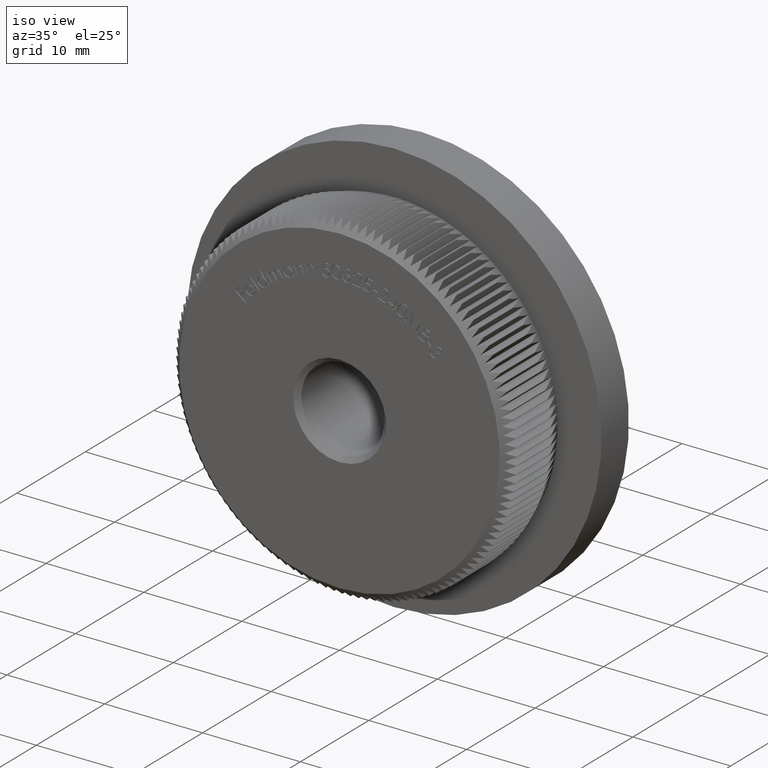
[diagram: clean part render]
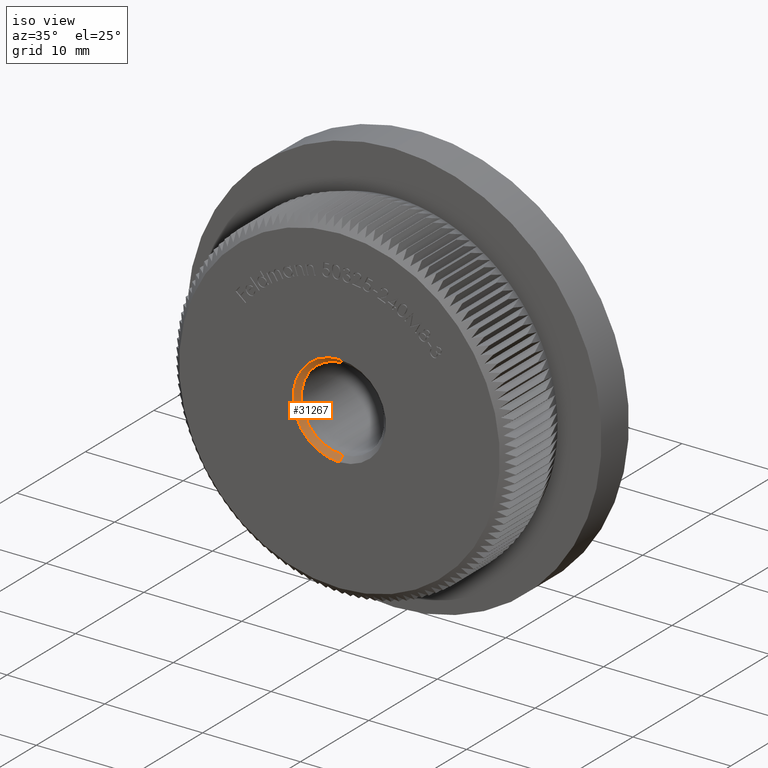
[diagram: same view with one face highlighted and labeled with its STEP entity id]
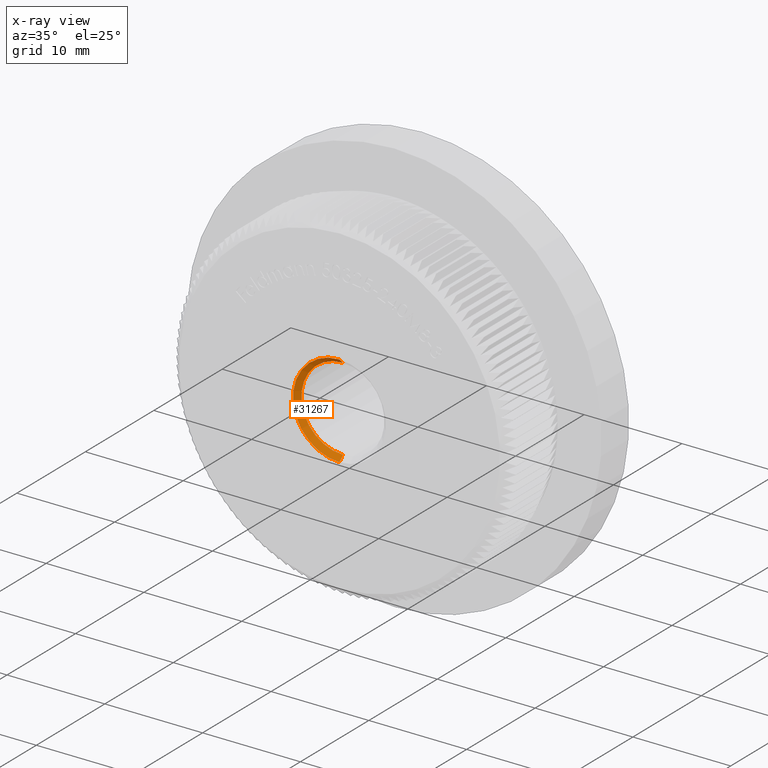
[diagram: x-ray of the same camera — body ghosted, the highlighted face saturated]
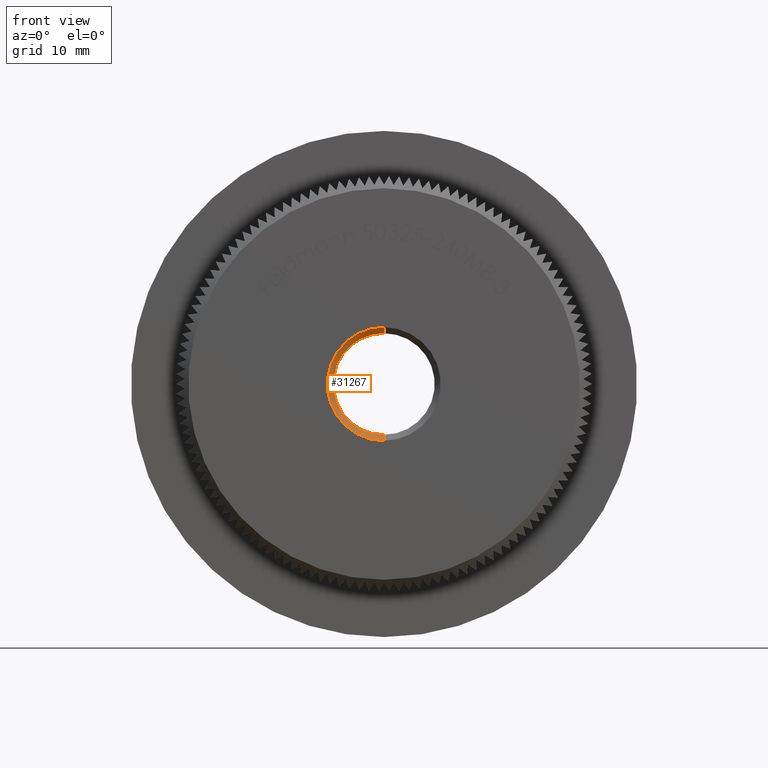
[diagram: same view with one face highlighted and labeled with its STEP entity id]
A machine part, iso view. The second image highlights one B-rep face of the part: STEP entity #31267.
The next image is the same camera in x-ray: the body ghosted, the highlighted face saturated — about 0% of this face is hidden behind the body in this view.
A second angle (front view) of the same face is appended — the face is thin or edge-on in the first view.
In plain terms, the highlighted conical surface has half-angle 45 deg.
Its self-contained STEP definition (entity closure, byte-faithful):
#838 = VERTEX_POINT ( 'NONE', #9972 ) ;
#862 = ORIENTED_EDGE ( 'NONE', *, *, #19292, .F. ) ;
#1239 = DIRECTION ( 'NONE',  ( 0.0000000000000000000, 0.0000000000000000000, -1.000000000000000000 ) ) ;
#1747 = DIRECTION ( 'NONE',  ( 0.0000000000000000000, -0.7071067811865432400, -0.7071067811865517900 ) ) ;
#3781 = ORIENTED_EDGE ( 'NONE', *, *, #21417, .F. ) ;
#4640 = ORIENTED_EDGE ( 'NONE', *, *, #32452, .F. ) ;
#6526 = CARTESIAN_POINT ( 'NONE',  ( 0.0000000000000000000, 0.5000000000000078800, 0.0000000000000000000 ) ) ;
#8167 = AXIS2_PLACEMENT_3D ( 'NONE', #19233, #21758, #11733 ) ;
#9894 = DIRECTION ( 'NONE',  ( 0.0000000000000000000, -1.000000000000000000, 0.0000000000000000000 ) ) ;
#9972 = CARTESIAN_POINT ( 'NONE',  ( 5.204748896376248700E-016, 0.5000000000000078800, 4.249999999999997300 ) ) ;
#10227 = EDGE_CURVE ( 'NONE', #838, #30052, #19107, .T. ) ;
#11066 = CIRCLE ( 'NONE', #13278, 4.249999999999997300 ) ;
#11733 = DIRECTION ( 'NONE',  ( 0.0000000000000000000, 0.0000000000000000000, -1.000000000000000000 ) ) ;
#12753 = CARTESIAN_POINT ( 'NONE',  ( 0.0000000000000000000, 0.5000000000000078800, 0.0000000000000000000 ) ) ;
#12952 = CIRCLE ( 'NONE', #8167, 4.750000000000011500 ) ;
#13278 = AXIS2_PLACEMENT_3D ( 'NONE', #6526, #24138, #1239 ) ;
#13383 = AXIS2_PLACEMENT_3D ( 'NONE', #12753, #9894, #17726 ) ;
#14135 = CARTESIAN_POINT ( 'NONE',  ( 0.0000000000000000000, 0.5000000000000078800, -4.249999999999997300 ) ) ;
#15670 = CONICAL_SURFACE ( 'NONE', #13383, 4.249999999999997300, 0.7853981633974543900 ) ;
#16100 = LINE ( 'NONE', #22004, #32299 ) ;
#17123 = VERTEX_POINT ( 'NONE', #26967 ) ;
#17726 = DIRECTION ( 'NONE',  ( 0.0000000000000000000, 0.0000000000000000000, -1.000000000000000000 ) ) ;
#19107 = LINE ( 'NONE', #22568, #20678 ) ;
#19233 = CARTESIAN_POINT ( 'NONE',  ( 0.0000000000000000000, 5.235365066354934100E-016, 0.0000000000000000000 ) ) ;
#19292 = EDGE_CURVE ( 'NONE', #838, #28461, #11066, .T. ) ;
#20391 = EDGE_LOOP ( 'NONE', ( #862, #27034, #4640, #3781 ) ) ;
#20474 = FACE_OUTER_BOUND ( 'NONE', #20391, .T. ) ;
#20678 = VECTOR ( 'NONE', #22449, 1000.000000000000000 ) ;
#20713 = CARTESIAN_POINT ( 'NONE',  ( 5.817072295949942200E-016, 5.235365066354934100E-016, 4.750000000000011500 ) ) ;
#21417 = EDGE_CURVE ( 'NONE', #28461, #17123, #16100, .T. ) ;
#21758 = DIRECTION ( 'NONE',  ( 0.0000000000000000000, 1.000000000000000000, 0.0000000000000000000 ) ) ;
#22004 = CARTESIAN_POINT ( 'NONE',  ( 0.0000000000000000000, 0.5000000000000078800, -4.249999999999997300 ) ) ;
#22449 = DIRECTION ( 'NONE',  ( 8.659560562354985900E-017, -0.7071067811865432400, 0.7071067811865517900 ) ) ;
#22568 = CARTESIAN_POINT ( 'NONE',  ( 5.204748896376248700E-016, 0.5000000000000078800, 4.249999999999997300 ) ) ;
#24138 = DIRECTION ( 'NONE',  ( 0.0000000000000000000, -1.000000000000000000, 0.0000000000000000000 ) ) ;
#26967 = CARTESIAN_POINT ( 'NONE',  ( 0.0000000000000000000, 5.235365066354934100E-016, -4.750000000000011500 ) ) ;
#27034 = ORIENTED_EDGE ( 'NONE', *, *, #10227, .T. ) ;
#28461 = VERTEX_POINT ( 'NONE', #14135 ) ;
#30052 = VERTEX_POINT ( 'NONE', #20713 ) ;
#31267 = ADVANCED_FACE ( 'NONE', ( #20474 ), #15670, .F. ) ;
#32299 = VECTOR ( 'NONE', #1747, 1000.000000000000000 ) ;
#32452 = EDGE_CURVE ( 'NONE', #17123, #30052, #12952, .T. ) ;